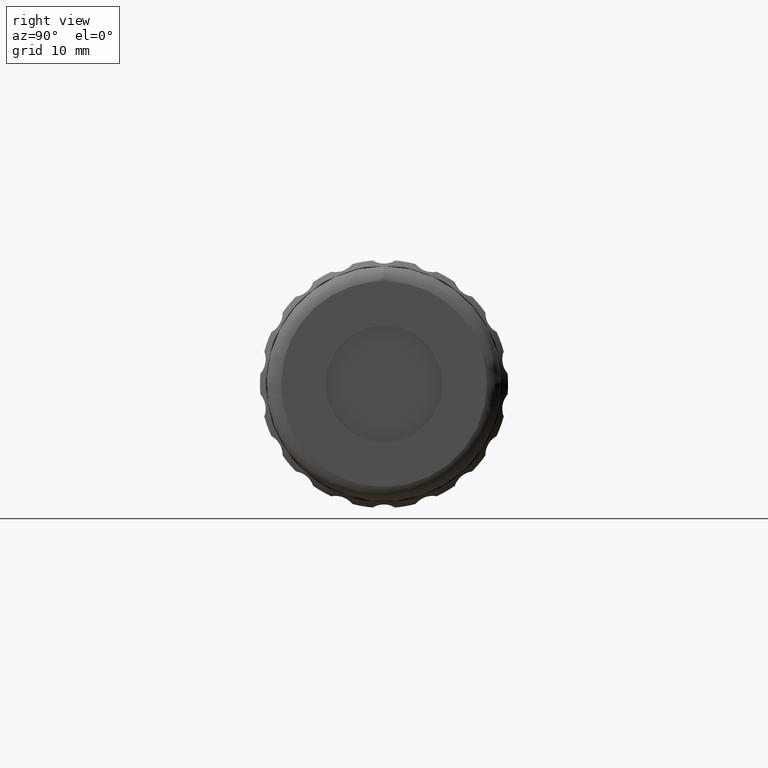
[diagram: clean part render]
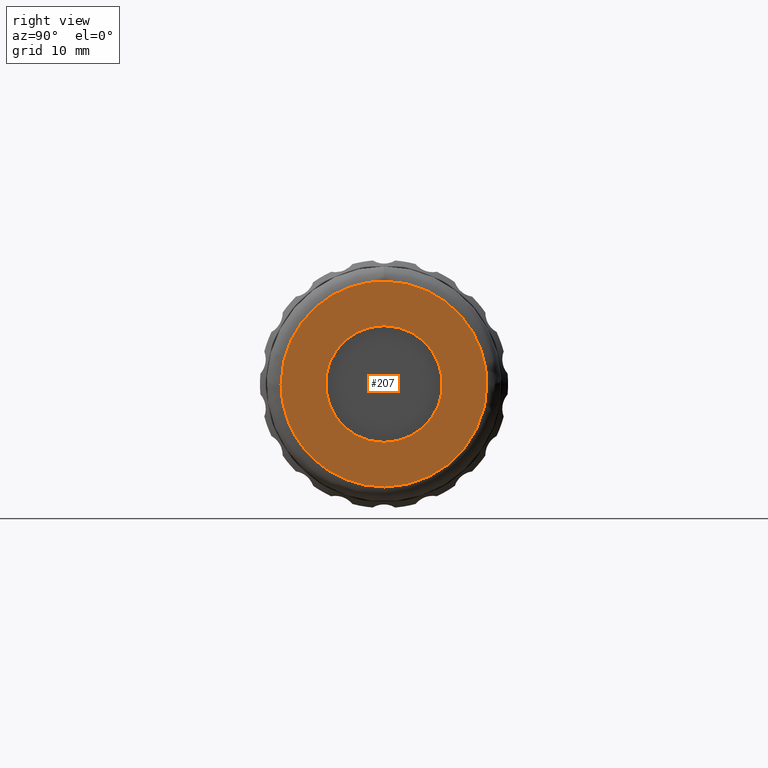
[diagram: same view with one face highlighted and labeled with its STEP entity id]
A machine part, right view. The second image highlights one B-rep face of the part: STEP entity #207.
In plain terms, the highlighted planar face has unit normal (1, 0, 0).
Its self-contained STEP definition (entity closure, byte-faithful):
#3 = CARTESIAN_POINT ( 'NONE',  ( 95.33704000000001599, 60.12096199999999868, 0.000000000000000000 ) ) ;
#38 = EDGE_CURVE ( 'NONE', #1662, #1408, #1439, .T. ) ;
#60 =( BOUNDED_CURVE ( )  B_SPLINE_CURVE ( 3, ( #256, #1105, #2016, #478 ),
 .UNSPECIFIED., .F., .T. ) 
 B_SPLINE_CURVE_WITH_KNOTS ( ( 4, 4 ),
 ( 0.000000000000000000, 1.000000000000000000 ),
 .UNSPECIFIED. ) 
 CURVE ( )  GEOMETRIC_REPRESENTATION_ITEM ( )  RATIONAL_B_SPLINE_CURVE ( ( 1.000000000000000000, 0.8047378541243649375, 0.8047378541243649375, 1.000000000000000000 ) ) 
 REPRESENTATION_ITEM ( '' )  );
#69 = EDGE_CURVE ( 'NONE', #1408, #157, #528, .T. ) ;
#73 = CIRCLE ( 'NONE', #359, 8.000000000000000000 ) ;
#157 = VERTEX_POINT ( 'NONE', #1452 ) ;
#160 = ORIENTED_EDGE ( 'NONE', *, *, #411, .F. ) ;
#190 = PLANE ( 'NONE',  #325 ) ;
#207 = ADVANCED_FACE ( 'NONE', ( #365, #1348 ), #190, .T. ) ;
#208 = CARTESIAN_POINT ( 'NONE',  ( 95.33704000000001599, 60.12096200000000579, -28.19999999999999929 ) ) ;
#256 = CARTESIAN_POINT ( 'NONE',  ( 95.33704000000001599, 46.02096199999999726, 14.10000000000000142 ) ) ;
#325 = AXIS2_PLACEMENT_3D ( 'NONE', #2054, #515, #1542 ) ;
#359 = AXIS2_PLACEMENT_3D ( 'NONE', #854, #1540, #1917 ) ;
#365 = FACE_BOUND ( 'NONE', #1273, .T. ) ;
#370 = CARTESIAN_POINT ( 'NONE',  ( 95.33704000000000178, 31.92096199999999584, 8.259588770539357583 ) ) ;
#411 = EDGE_CURVE ( 'NONE', #157, #1662, #60, .T. ) ;
#461 = CARTESIAN_POINT ( 'NONE',  ( 95.33704000000000178, 46.02096199999999726, -8.000000000000000000 ) ) ;
#478 = CARTESIAN_POINT ( 'NONE',  ( 95.33704000000001599, 60.12096199999999868, 0.000000000000000000 ) ) ;
#515 = DIRECTION ( 'NONE',  ( 1.000000000000000000, 0.000000000000000000, 0.000000000000000000 ) ) ;
#528 =( BOUNDED_CURVE ( )  B_SPLINE_CURVE ( 3, ( #1743, #370, #716, #2087 ),
 .UNSPECIFIED., .F., .F. ) 
 B_SPLINE_CURVE_WITH_KNOTS ( ( 4, 4 ),
 ( 0.000000000000000000, 1.000000000000000000 ),
 .UNSPECIFIED. ) 
 CURVE ( )  GEOMETRIC_REPRESENTATION_ITEM ( )  RATIONAL_B_SPLINE_CURVE ( ( 1.000000000000000000, 0.8047378541243649375, 0.8047378541243649375, 1.000000000000000000 ) ) 
 REPRESENTATION_ITEM ( '' )  );
#591 = EDGE_CURVE ( 'NONE', #1999, #1999, #73, .T. ) ;
#716 = CARTESIAN_POINT ( 'NONE',  ( 95.33704000000000178, 37.76137322946063790, 14.09999999999999964 ) ) ;
#725 = CARTESIAN_POINT ( 'NONE',  ( 95.33704000000001599, 60.12096199999999868, 0.000000000000000000 ) ) ;
#849 = CARTESIAN_POINT ( 'NONE',  ( 95.33704000000001599, 31.92096199999999584, -1.036051192078660836E-15 ) ) ;
#854 = CARTESIAN_POINT ( 'NONE',  ( 95.33704000000000178, 46.02096199999999726, 4.350675744370770171E-31 ) ) ;
#894 = CARTESIAN_POINT ( 'NONE',  ( 95.33704000000001599, 31.92096199999999584, -28.19999999999999929 ) ) ;
#1033 = ORIENTED_EDGE ( 'NONE', *, *, #38, .F. ) ;
#1105 = CARTESIAN_POINT ( 'NONE',  ( 95.33704000000000178, 54.28055077053935662, 14.09999999999999964 ) ) ;
#1273 = EDGE_LOOP ( 'NONE', ( #1410 ) ) ;
#1348 = FACE_OUTER_BOUND ( 'NONE', #1644, .T. ) ;
#1408 = VERTEX_POINT ( 'NONE', #1606 ) ;
#1410 = ORIENTED_EDGE ( 'NONE', *, *, #591, .T. ) ;
#1432 = ORIENTED_EDGE ( 'NONE', *, *, #69, .F. ) ;
#1439 =( BOUNDED_CURVE ( )  B_SPLINE_CURVE ( 3, ( #725, #208, #894, #849 ),
 .UNSPECIFIED., .F., .F. ) 
 B_SPLINE_CURVE_WITH_KNOTS ( ( 4, 4 ),
 ( 0.000000000000000000, 1.000000000000000000 ),
 .UNSPECIFIED. ) 
 CURVE ( )  GEOMETRIC_REPRESENTATION_ITEM ( )  RATIONAL_B_SPLINE_CURVE ( ( 1.000000000000000000, 0.3333333333333333703, 0.3333333333333333703, 1.000000000000000000 ) ) 
 REPRESENTATION_ITEM ( '' )  );
#1452 = CARTESIAN_POINT ( 'NONE',  ( 95.33704000000001599, 46.02096199999999726, 14.10000000000000142 ) ) ;
#1540 = DIRECTION ( 'NONE',  ( -1.000000000000000000, -0.000000000000000000, -0.000000000000000000 ) ) ;
#1542 = DIRECTION ( 'NONE',  ( 0.000000000000000000, 0.000000000000000000, -1.000000000000000000 ) ) ;
#1606 = CARTESIAN_POINT ( 'NONE',  ( 95.33704000000001599, 31.92096199999999584, -1.036051192078660836E-15 ) ) ;
#1644 = EDGE_LOOP ( 'NONE', ( #1033, #160, #1432 ) ) ;
#1662 = VERTEX_POINT ( 'NONE', #3 ) ;
#1743 = CARTESIAN_POINT ( 'NONE',  ( 95.33704000000001599, 31.92096199999999584, -1.036051192078660836E-15 ) ) ;
#1917 = DIRECTION ( 'NONE',  ( 0.000000000000000000, 0.000000000000000000, -1.000000000000000000 ) ) ;
#1999 = VERTEX_POINT ( 'NONE', #461 ) ;
#2016 = CARTESIAN_POINT ( 'NONE',  ( 95.33704000000000178, 60.12096199999999868, 8.259588770539359359 ) ) ;
#2054 = CARTESIAN_POINT ( 'NONE',  ( 95.33704000000000178, 46.02096199999999726, 14.44999999999999929 ) ) ;
#2087 = CARTESIAN_POINT ( 'NONE',  ( 95.33704000000001599, 46.02096199999999726, 14.10000000000000142 ) ) ;